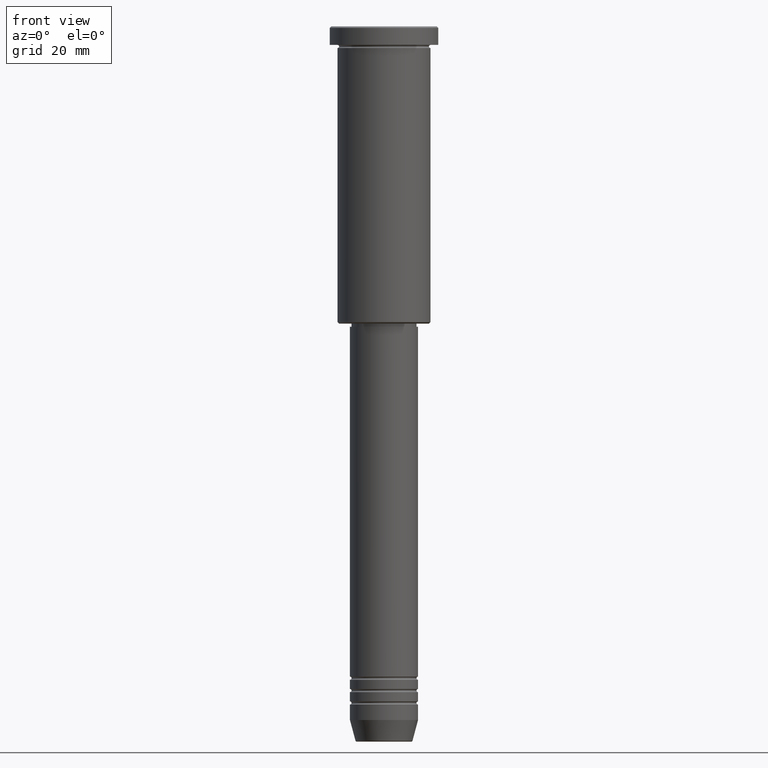
[diagram: clean part render]
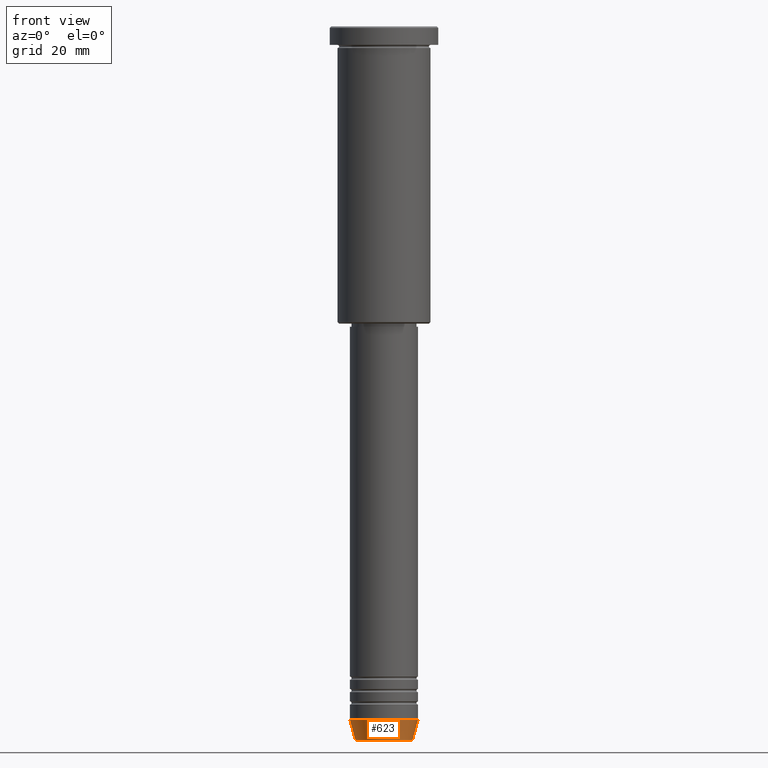
[diagram: same view with one face highlighted and labeled with its STEP entity id]
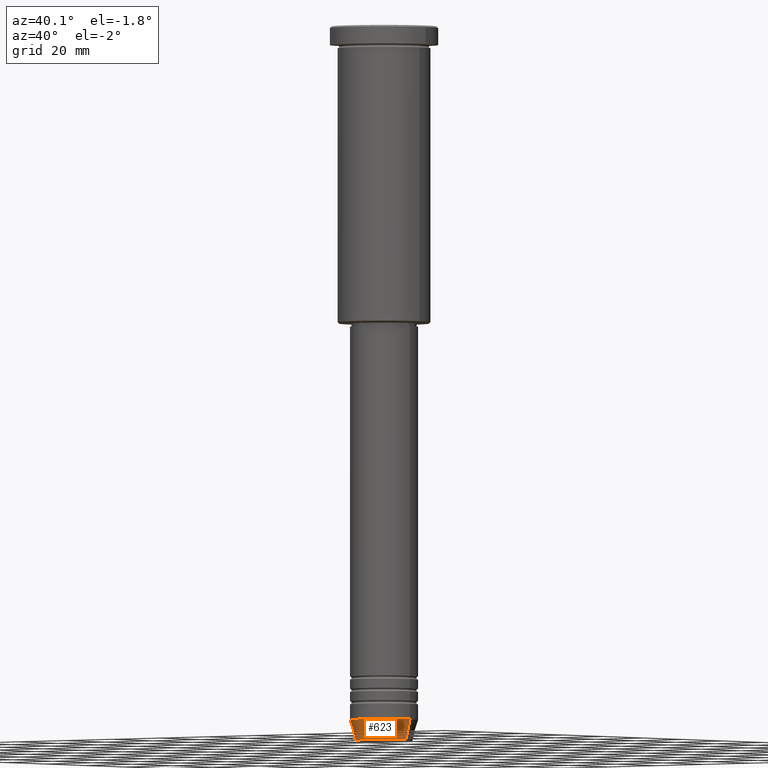
[diagram: same view with one face highlighted and labeled with its STEP entity id]
A machine part, front view. The second image highlights one B-rep face of the part: STEP entity #623.
A second angle (auxiliary view) of the same face is appended — the face is thin or edge-on in the first view.
In plain terms, the highlighted conical surface has half-angle 15 deg.
Its self-contained STEP definition (entity closure, byte-faithful):
#17 = DIRECTION ( 'NONE',  ( -0.2588190451025213501, 3.169619151431772337E-17, 0.9659258262890680902 ) ) ;
#28 = EDGE_LOOP ( 'NONE', ( #460, #929, #1032, #146 ) ) ;
#65 = AXIS2_PLACEMENT_3D ( 'NONE', #89, #114, #834 ) ;
#84 = VECTOR ( 'NONE', #814, 1000.000000000000000 ) ;
#89 = CARTESIAN_POINT ( 'NONE',  ( 0.000000000000000000, 0.000000000000000000, -224.0000000000000284 ) ) ;
#107 = LINE ( 'NONE', #459, #263 ) ;
#114 = DIRECTION ( 'NONE',  ( -0.000000000000000000, -0.000000000000000000, 1.000000000000000000 ) ) ;
#146 = ORIENTED_EDGE ( 'NONE', *, *, #277, .F. ) ;
#150 = DIRECTION ( 'NONE',  ( -0.000000000000000000, -0.000000000000000000, 1.000000000000000000 ) ) ;
#236 = VERTEX_POINT ( 'NONE', #652 ) ;
#244 = AXIS2_PLACEMENT_3D ( 'NONE', #864, #150, #1049 ) ;
#255 = VERTEX_POINT ( 'NONE', #633 ) ;
#263 = VECTOR ( 'NONE', #17, 1000.000000000000000 ) ;
#277 = EDGE_CURVE ( 'NONE', #1129, #236, #418, .T. ) ;
#297 = DIRECTION ( 'NONE',  ( -0.000000000000000000, -0.000000000000000000, 1.000000000000000000 ) ) ;
#302 = EDGE_CURVE ( 'NONE', #760, #1129, #107, .T. ) ;
#307 = CIRCLE ( 'NONE', #785, 9.223655072137189492 ) ;
#354 = CARTESIAN_POINT ( 'NONE',  ( 11.00000000000000000, 0.000000000000000000, -224.0000000000000284 ) ) ;
#395 = EDGE_CURVE ( 'NONE', #760, #255, #307, .T. ) ;
#413 = DIRECTION ( 'NONE',  ( 1.000000000000000000, 0.000000000000000000, 0.000000000000000000 ) ) ;
#418 = CIRCLE ( 'NONE', #65, 11.00000000000000000 ) ;
#447 = LINE ( 'NONE', #354, #84 ) ;
#459 = CARTESIAN_POINT ( 'NONE',  ( -11.00000000000000000, 1.347111479062088405E-15, -224.0000000000000284 ) ) ;
#460 = ORIENTED_EDGE ( 'NONE', *, *, #302, .F. ) ;
#597 = CONICAL_SURFACE ( 'NONE', #244, 11.00000000000000000, 0.2617993877991500740 ) ;
#598 = FACE_OUTER_BOUND ( 'NONE', #28, .T. ) ;
#623 = ADVANCED_FACE ( 'NONE', ( #598 ), #597, .T. ) ;
#633 = CARTESIAN_POINT ( 'NONE',  ( 9.223655072137189492, 0.000000000000000000, -230.6294095225512990 ) ) ;
#652 = CARTESIAN_POINT ( 'NONE',  ( 11.00000000000000000, 0.000000000000000000, -224.0000000000000284 ) ) ;
#713 = CARTESIAN_POINT ( 'NONE',  ( -11.00000000000000000, 1.347111479062088405E-15, -224.0000000000000284 ) ) ;
#760 = VERTEX_POINT ( 'NONE', #778 ) ;
#778 = CARTESIAN_POINT ( 'NONE',  ( -9.223655072137189492, 1.238341722557647202E-15, -230.6294095225512990 ) ) ;
#785 = AXIS2_PLACEMENT_3D ( 'NONE', #856, #297, #413 ) ;
#804 = EDGE_CURVE ( 'NONE', #255, #236, #447, .T. ) ;
#814 = DIRECTION ( 'NONE',  ( 0.2588190451025213501, 0.000000000000000000, 0.9659258262890680902 ) ) ;
#834 = DIRECTION ( 'NONE',  ( 1.000000000000000000, 0.000000000000000000, 0.000000000000000000 ) ) ;
#856 = CARTESIAN_POINT ( 'NONE',  ( 0.000000000000000000, 0.000000000000000000, -230.6294095225512990 ) ) ;
#864 = CARTESIAN_POINT ( 'NONE',  ( 0.000000000000000000, 0.000000000000000000, -224.0000000000000284 ) ) ;
#929 = ORIENTED_EDGE ( 'NONE', *, *, #395, .T. ) ;
#1032 = ORIENTED_EDGE ( 'NONE', *, *, #804, .T. ) ;
#1049 = DIRECTION ( 'NONE',  ( 1.000000000000000000, 0.000000000000000000, 0.000000000000000000 ) ) ;
#1129 = VERTEX_POINT ( 'NONE', #713 ) ;